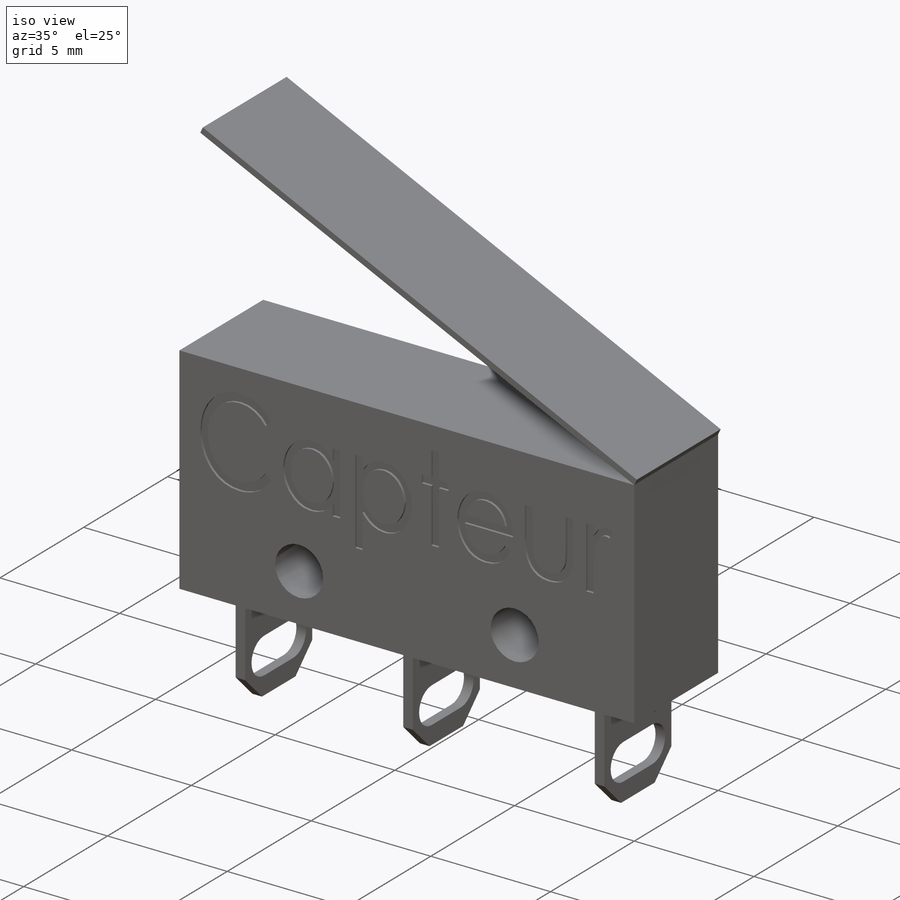
[diagram: iso view]
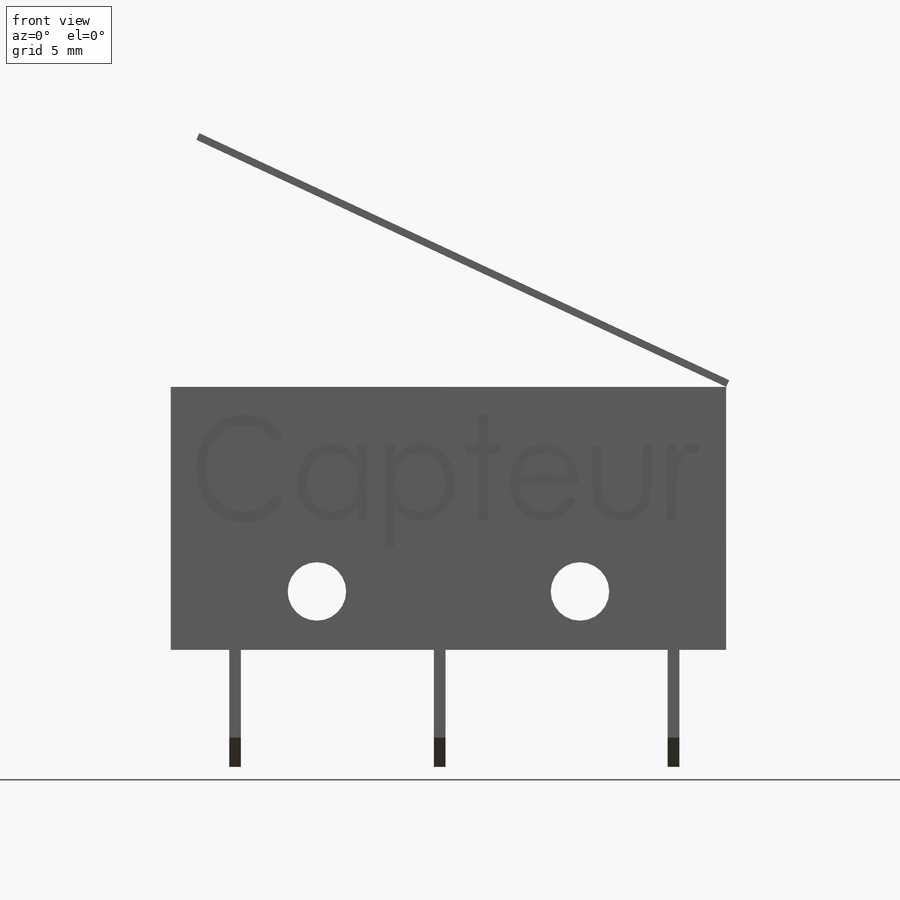
[diagram: front view]
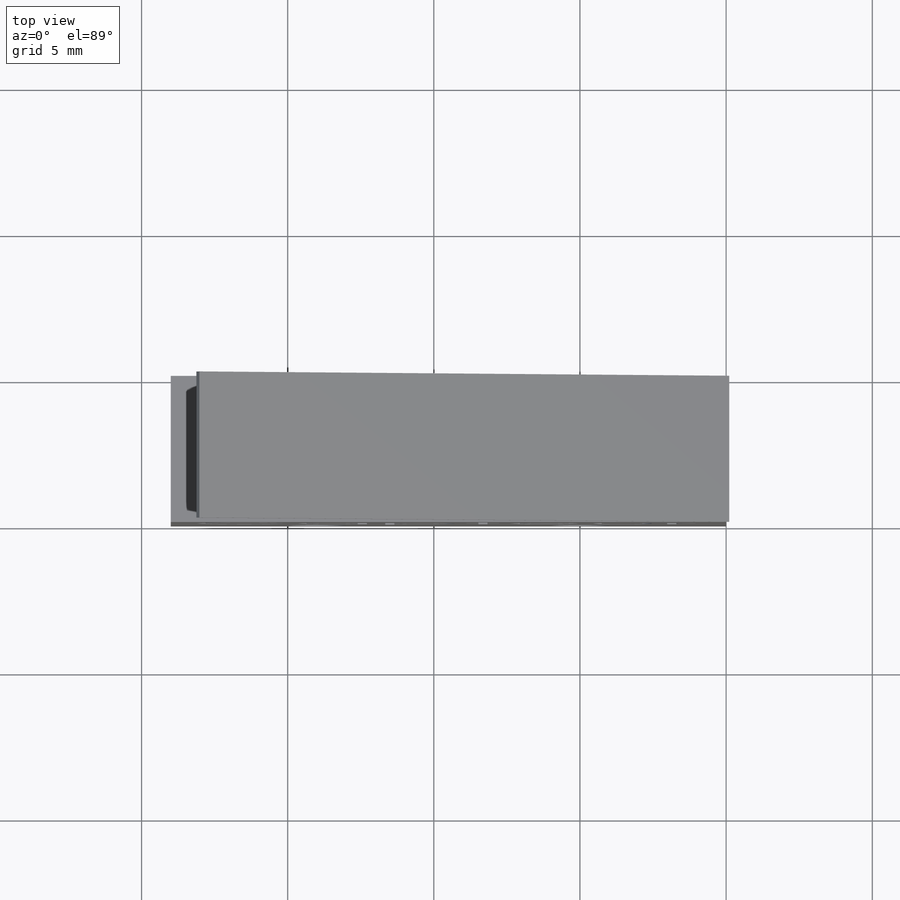
[diagram: top view]
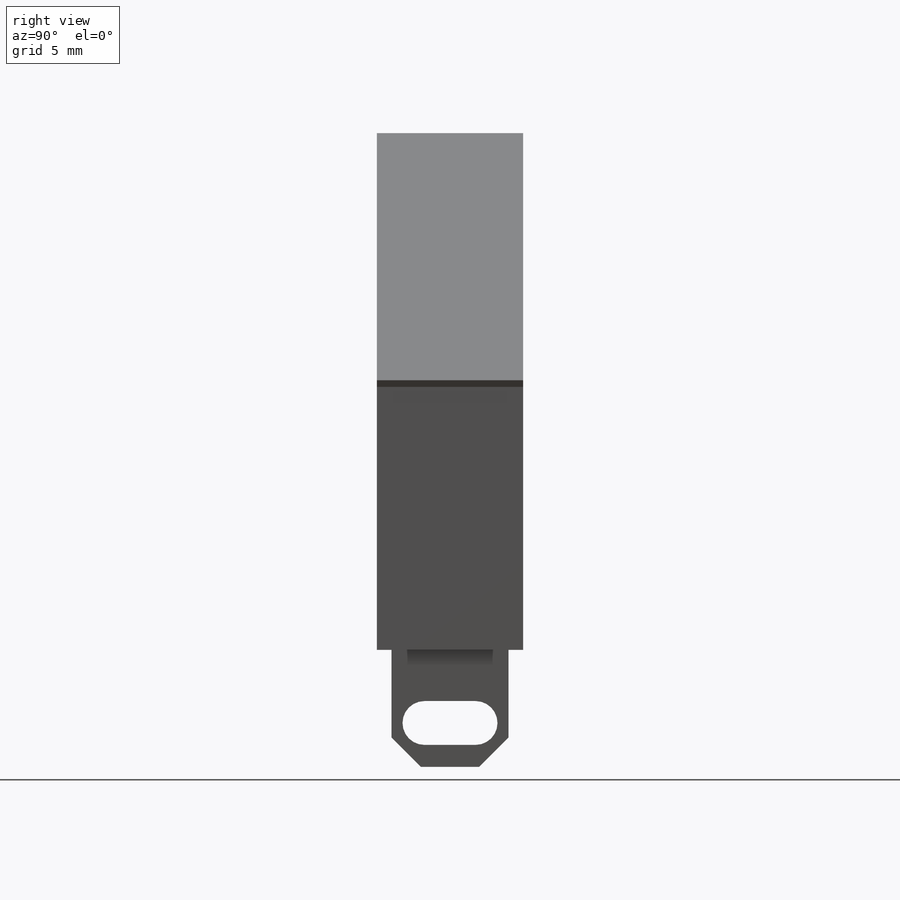
[diagram: right view]
SOLIDWORKS PART (.sldprt)
format: sldprt  version: not decoded by parser v0  size: 488,960 bytes
history: native  units: mm
features: sketch x8, cut_extrude x4, plane x3, extrude x3, material x1, pattern_linear x1, chamfer x1 (+13 scaffold rows collapsed)
feature tree (34):
  scaffold x13  (default folders/planes/origin — collapsed)
  material  "Matériau <non spécifié>"
  plane  "Plan de face"
  plane  "Plan de dessus"
  plane  "Plan de droite"
  sketch  "Esquisse1"  dims[D1=9.0mm D2=19.0mm]
  extrude  "Extrusion1"  Depth=5mm
  sketch  "Esquisse2"  dims[D1=4.0mm D2=0.4mm D3=2.0mm]
  extrude  "Extrusion2"  Depth=4mm
  pattern_linear  "Répétition linéaire1"  Count1=2 Count2=2 Spacing1=7mm Spacing2=15mm
  chamfer  "Chanfrein1"  Distance=1mm Angle=45deg
  sketch  "Esquisse4"  dims[D1=1.5mm]
  cut_extrude  "Extrusion3"  [1 undecoded]
  sketch  "Plan languette"  dims[D1=25.0deg]
  sketch  "Esquisse5"  dims[D1=20.0mm]
  extrude  "Extrusion4"  Depth=0.25mm
  sketch  "Esquisse6"  dims[D1=2.0mm D2=2.0mm D3=5.0mm D4=5.0mm D5=2.0mm]
  cut_extrude  "Extrusion5"  [1 undecoded]
  sketch  "Esquisse7"
  cut_extrude  "Extrusion6"  Depth=0.1mm
  sketch  "Esquisse8"
  cut_extrude  "Extrusion8"  Depth=0.1mm
decode coverage: 13 of 17 modeling features carry decoded parameters
note: 2 parameter values undecoded
note: suppression state not decoded; provenance and decode notes live in map.json
